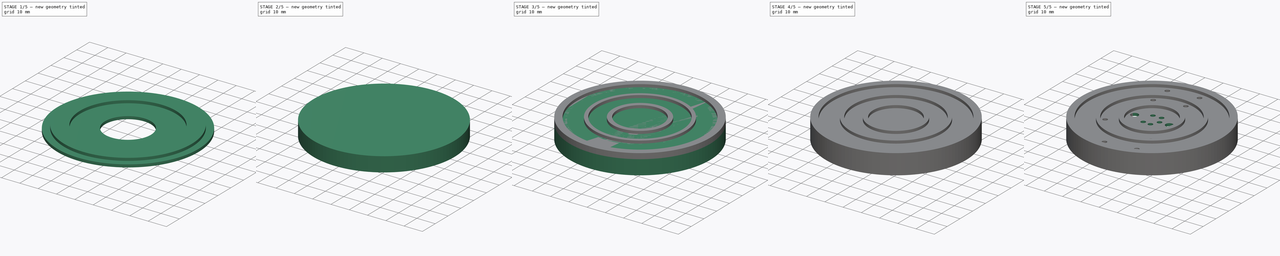
[diagram: build sequence overview — one tinted view per stage of 5, left to right]
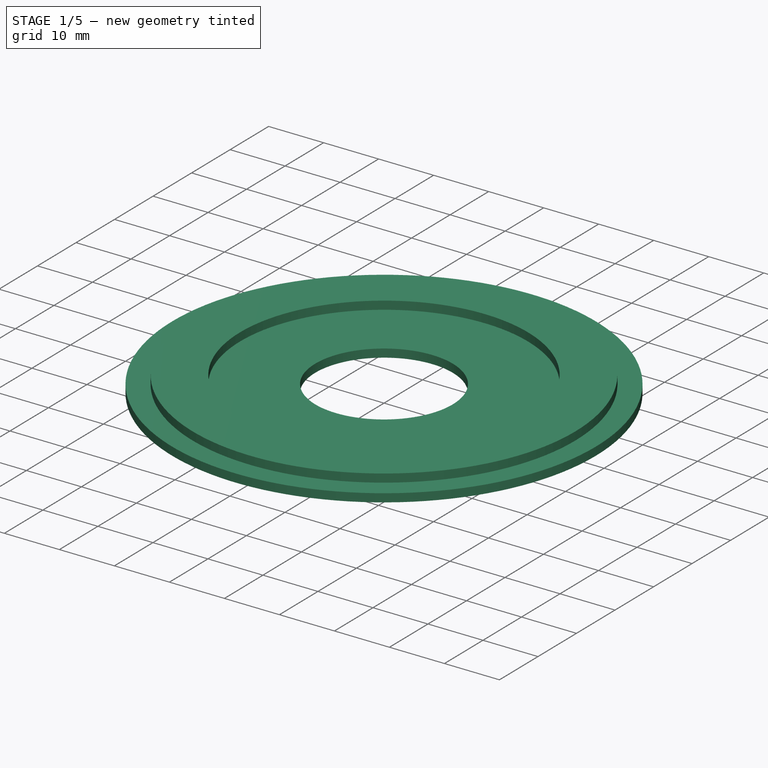
[diagram: stage 1 of 5 — iso view after this stage's code; geometry added in this stage tinted green]
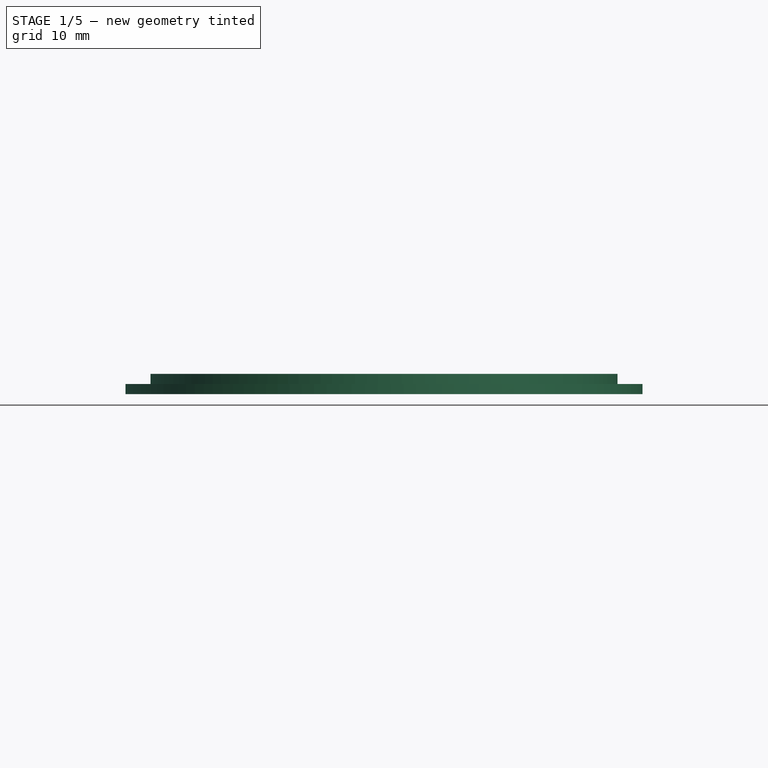
[diagram: stage 1 of 5 — front view after this stage's code; geometry added in this stage tinted green]
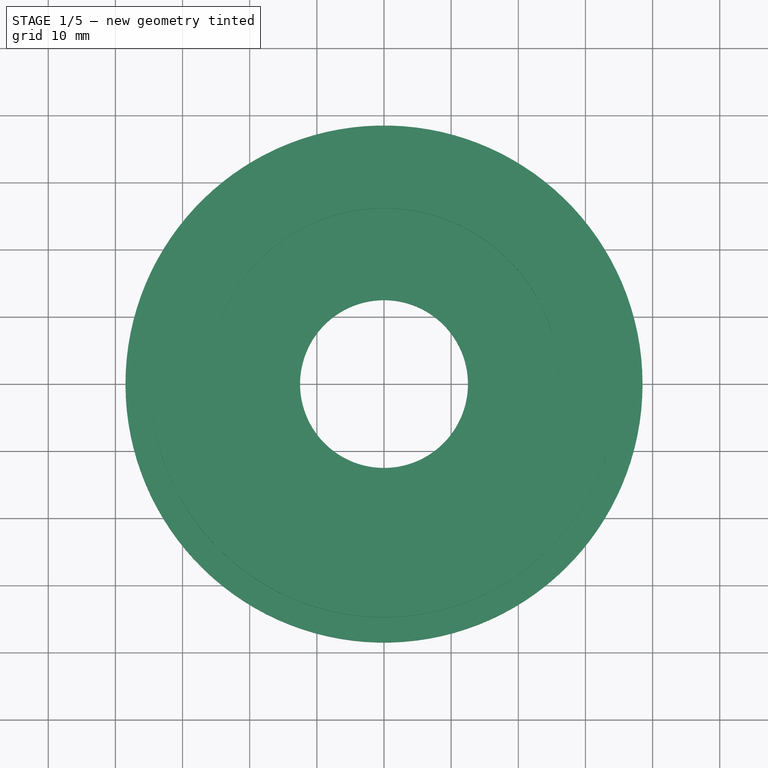
[diagram: stage 1 of 5 — top view after this stage's code; geometry added in this stage tinted green]
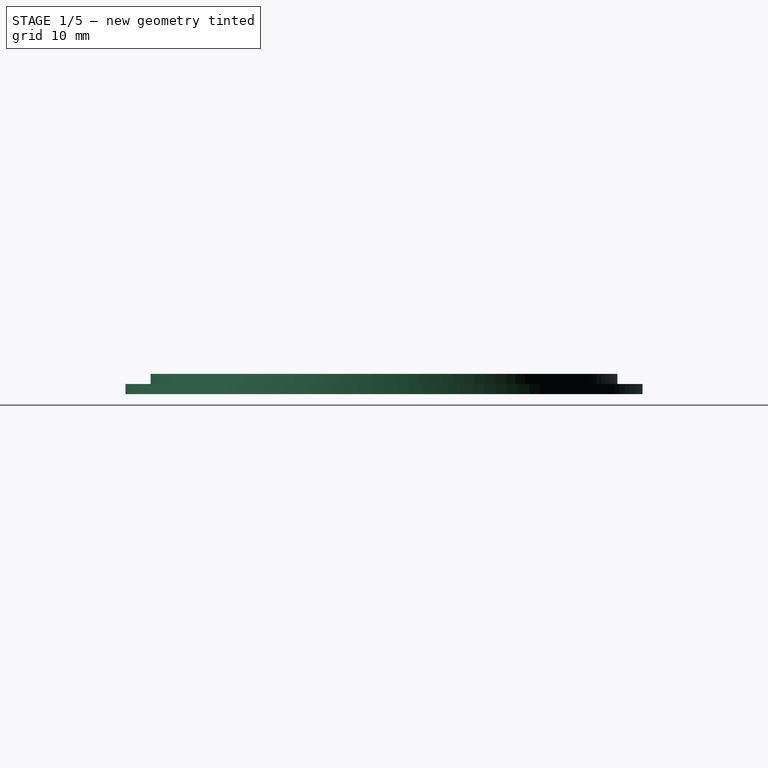
[diagram: stage 1 of 5 — right view after this stage's code; geometry added in this stage tinted green]
FCSTD DOCUMENT  (FreeCAD 0.15R4671 (Git))
Label: u-px-gnd-illuminator-cap
License: All rights reserved
LicenseURL: http://es.wikipedia.org/wiki/Todos_los_derechos_reservados
objects: Sketcher::SketchObject×18, Part::Cut×14, Part::FeaturePython×9, Part::Cylinder×8, Part::MultiFuse×1
note: 50 computed .brp shape members not serialized (recipe doc carries the construction recipe); baked Part::Feature solids carry a one-line shape summary decoded from their .brp

FEATURE [Sketcher::SketchObject] PCB_Border006
  sketch-geometry (1):
    g0: Circle CenterX=0 CenterY=0 CenterZ=0 NormalX=0 NormalY=0 NormalZ=1 Radius=12.5004
  constraints (1):
    c: Radius(g0) = 12.5004
FEATURE [Sketcher::SketchObject] PCB_Holes006
FEATURE [Part::FeaturePython] Board006  # WARN: FeaturePython — macro-defined, semantics opaque (R4)
  AutoUpdate = true
  Border = -> PCB_Border006
  Display = true
  Holes = -> PCB_Holes006
  Thickness = 1.5
FEATURE [Part::Cylinder] Cylinder003  label="Cilindro003"
  Angle = 360
  Height = 1.5
  Radius = 38.5
FEATURE [Part::Cut] Cut008
  Base = -> Cylinder003
  Tool = -> Board006
FEATURE [Part::Cylinder] Cylinder006  label="Cilindro006"
  Angle = 360
  Height = 1.5
  Placement = pos=(0,0,1.5) rot=(0,0,1;0rad)
  Radius = 26.162
FEATURE [Part::Cylinder] Cylinder007  label="Cilindro007"
  Angle = 360
  Height = 1.5
  Placement = pos=(0,0,1.5) rot=(0,0,1;0rad)
  Radius = 34.766
FEATURE [Part::Cut] Cut012
  Base = -> Cylinder007
  Tool = -> Cylinder006
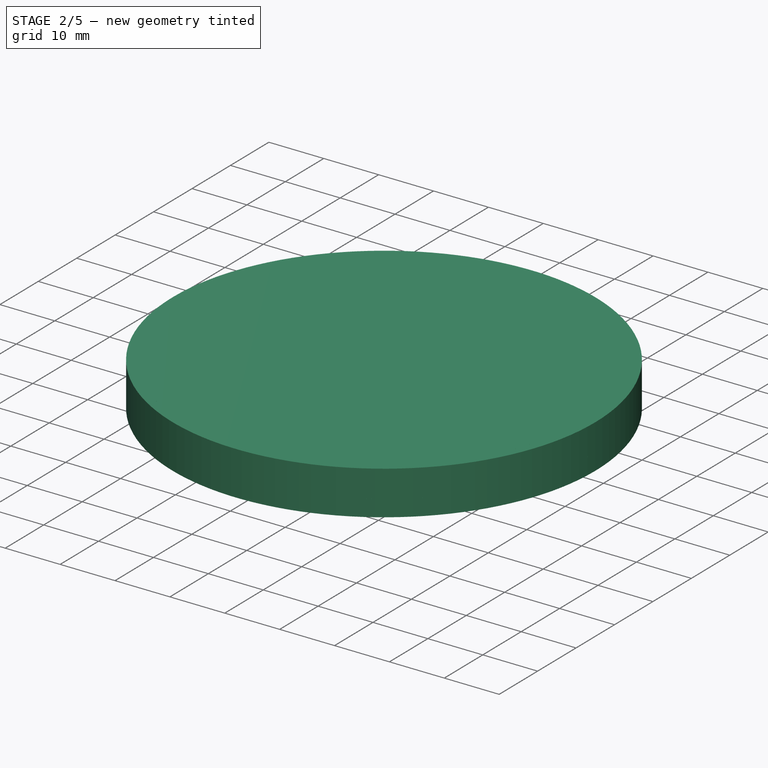
[diagram: stage 2 of 5 — iso view after this stage's code; geometry added in this stage tinted green]
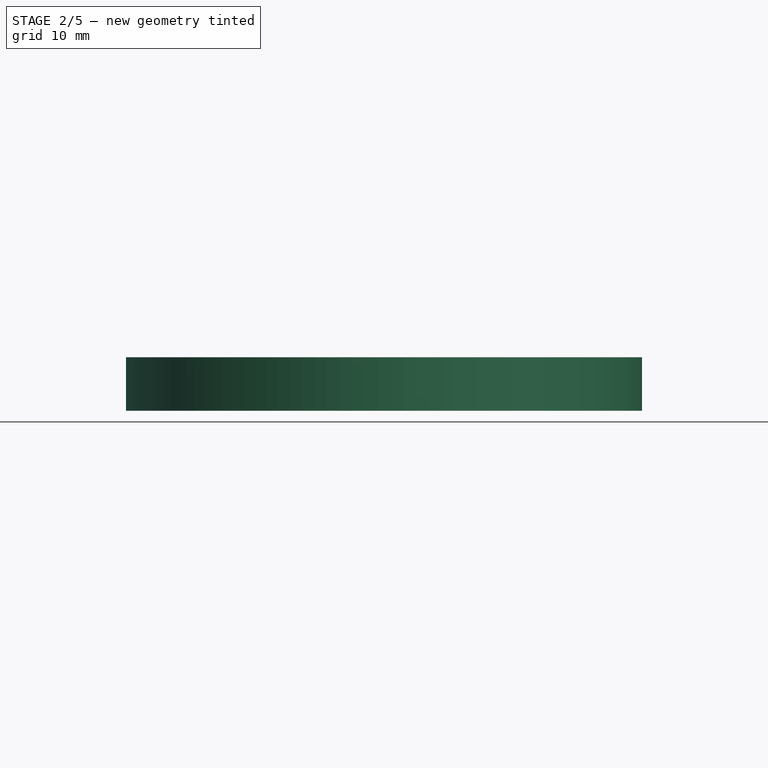
[diagram: stage 2 of 5 — front view after this stage's code; geometry added in this stage tinted green]
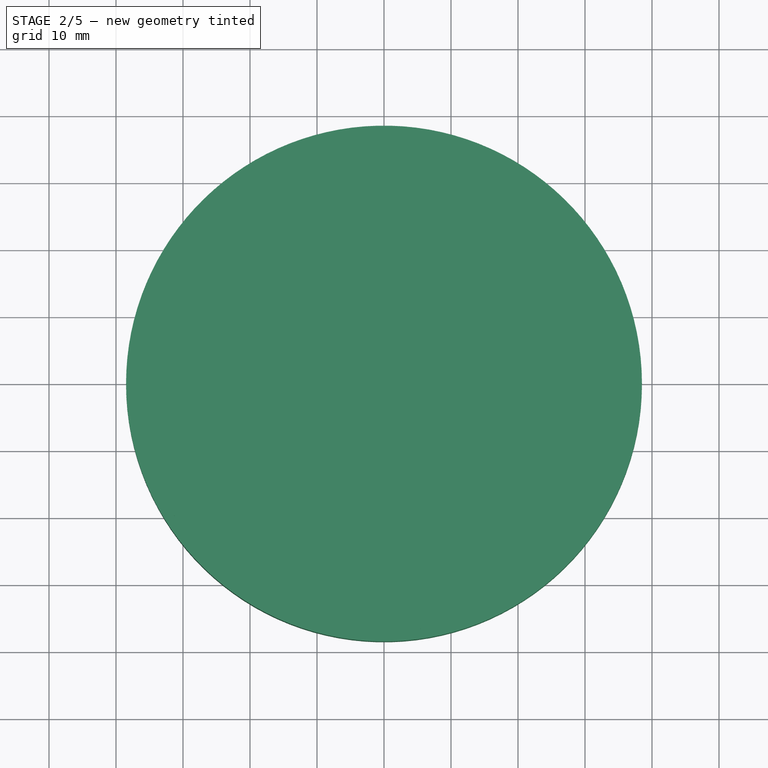
[diagram: stage 2 of 5 — top view after this stage's code; geometry added in this stage tinted green]
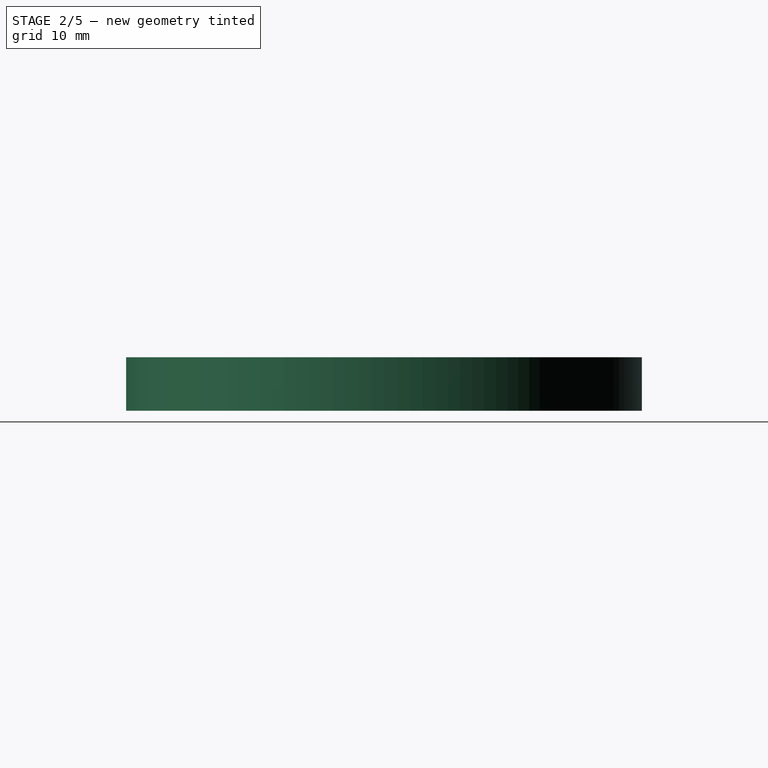
[diagram: stage 2 of 5 — right view after this stage's code; geometry added in this stage tinted green]
FEATURE [Sketcher::SketchObject] PCB_Border007
  sketch-geometry (5):
    g0: ArcOfCircle CenterX=0.0751722 CenterY=-0.924744 CenterZ=0 NormalX=0 NormalY=0 NormalZ=1 Radius=33.766 StartAngle=1.57302 EndAngle=3.1142
    g1: ArcOfCircle CenterX=-0.0751722 CenterY=-0.367895 CenterZ=0 NormalX=0 NormalY=0 NormalZ=1 Radius=33.766 StartAngle=0.0108956 EndAngle=1.56857
    g2: ArcOfCircle CenterX=-0.0751722 CenterY=0.367895 CenterZ=0 NormalX=0 NormalY=0 NormalZ=1 Radius=33.766 StartAngle=4.71462 EndAngle=6.27229
    g3: ArcOfCircle CenterX=0.0751722 CenterY=0.0751722 CenterZ=0 NormalX=0 NormalY=0 NormalZ=1 Radius=33.766 StartAngle=3.14382 EndAngle=4.71016
    g4: Circle CenterX=0 CenterY=0 CenterZ=0 NormalX=0 NormalY=0 NormalZ=1 Radius=25.162
  constraints (1):
    c: Radius(g4) = 25.162
FEATURE [Sketcher::SketchObject] PCB_Holes007
FEATURE [Part::FeaturePython] Board007  # WARN: FeaturePython — macro-defined, semantics opaque (R4)
  AutoUpdate = true
  Border = -> PCB_Border007
  Display = true
  Holes = -> PCB_Holes007
  Thickness = 1.5
FEATURE [Sketcher::SketchObject] PCB_Border008
  sketch-geometry (2):
    g0: Circle CenterX=0 CenterY=0 CenterZ=0 NormalX=0 NormalY=0 NormalZ=1 Radius=23.225
    g1: Circle CenterX=0 CenterY=0 CenterZ=0 NormalX=0 NormalY=0 NormalZ=1 Radius=14.875
  constraints (2):
    c: Radius(g0) = 23.225
    c: Radius(g1) = 14.875
FEATURE [Sketcher::SketchObject] PCB_Holes008
FEATURE [Part::FeaturePython] Board008  # WARN: FeaturePython — macro-defined, semantics opaque (R4)
  AutoUpdate = true
  Border = -> PCB_Border008
  Display = true
  Holes = -> PCB_Holes008
  Thickness = 1.5
FEATURE [Part::Cut] Cut009
  Base = -> Cut008
  Tool = -> Board008
FEATURE [Part::Cut] Cut010
  Base = -> Cut009
  Placement = pos=(0,0,1.5) rot=(0,0,1;0rad)
  Tool = -> Board007
FEATURE [Part::Cylinder] Cylinder004  label="Cilindro004"
  Angle = 360
  Height = 8
  Radius = 38.5
FEATURE [Part::Cylinder] Cylinder005  label="Cilindro005"
  Angle = 360
  Height = 8
  Radius = 37
FEATURE [Part::Cut] Cut013
  Base = -> Cut010
  Tool = -> Cut012
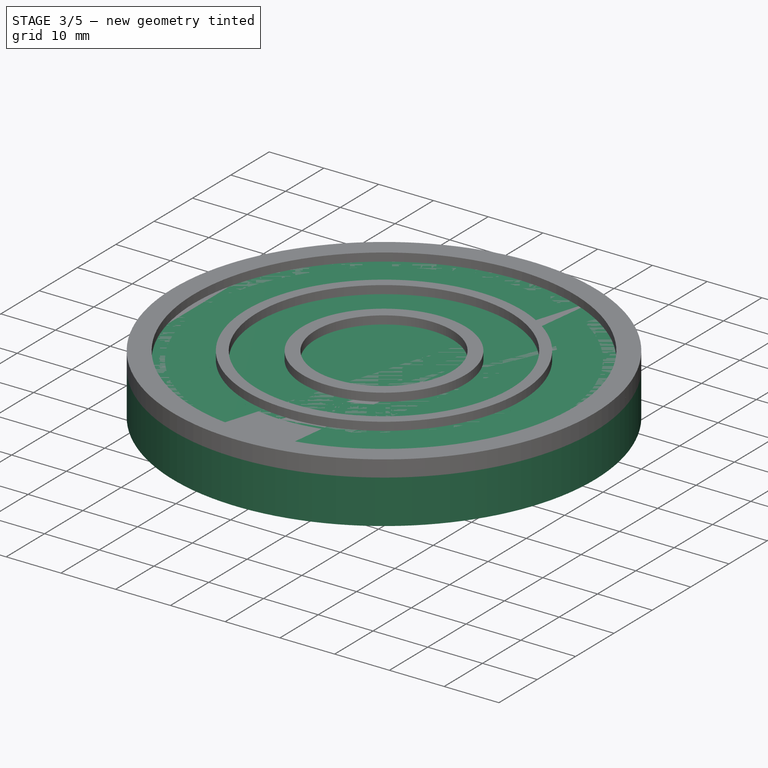
[diagram: stage 3 of 5 — iso view after this stage's code; geometry added in this stage tinted green]
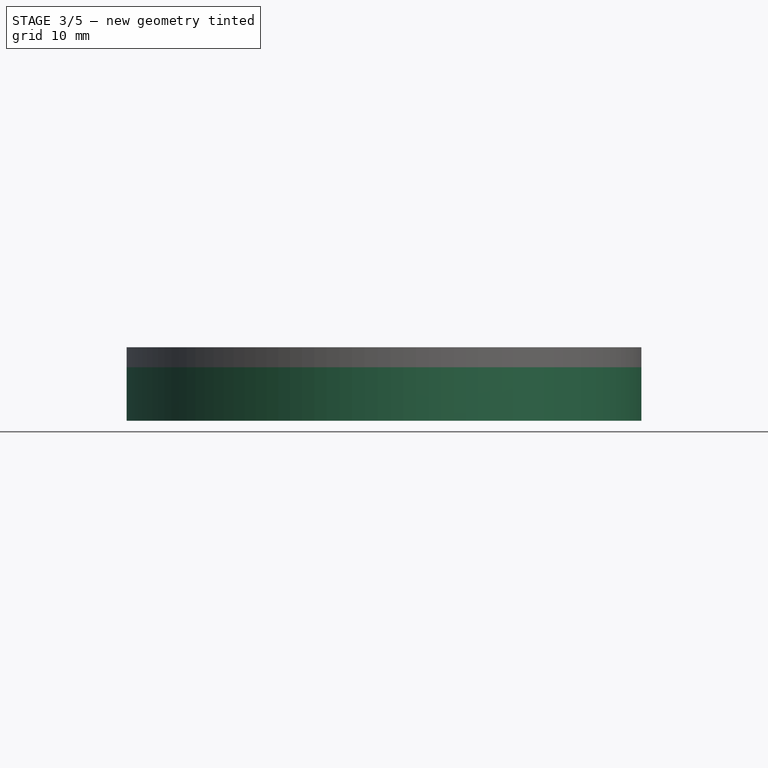
[diagram: stage 3 of 5 — front view after this stage's code; geometry added in this stage tinted green]
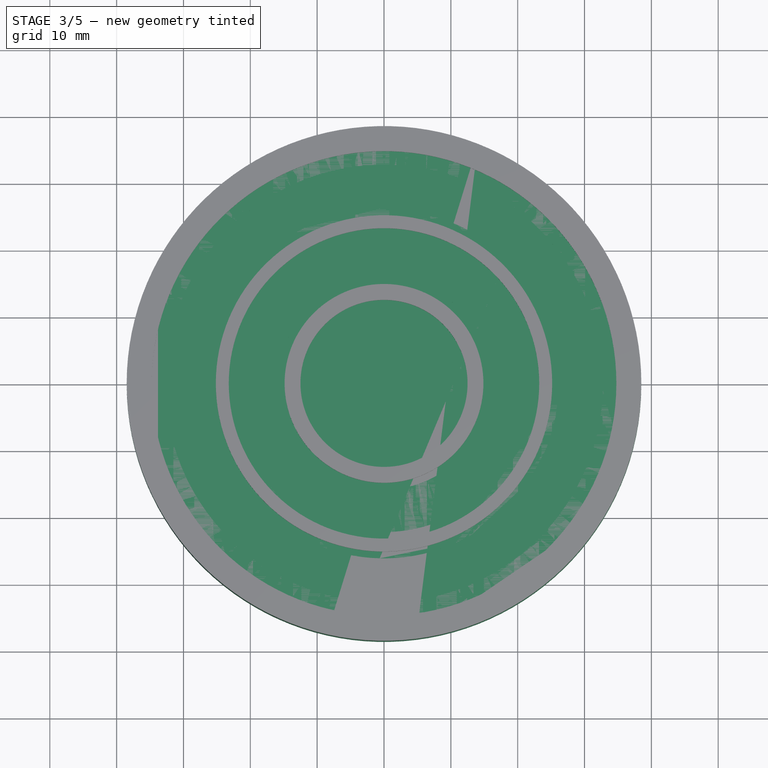
[diagram: stage 3 of 5 — top view after this stage's code; geometry added in this stage tinted green]
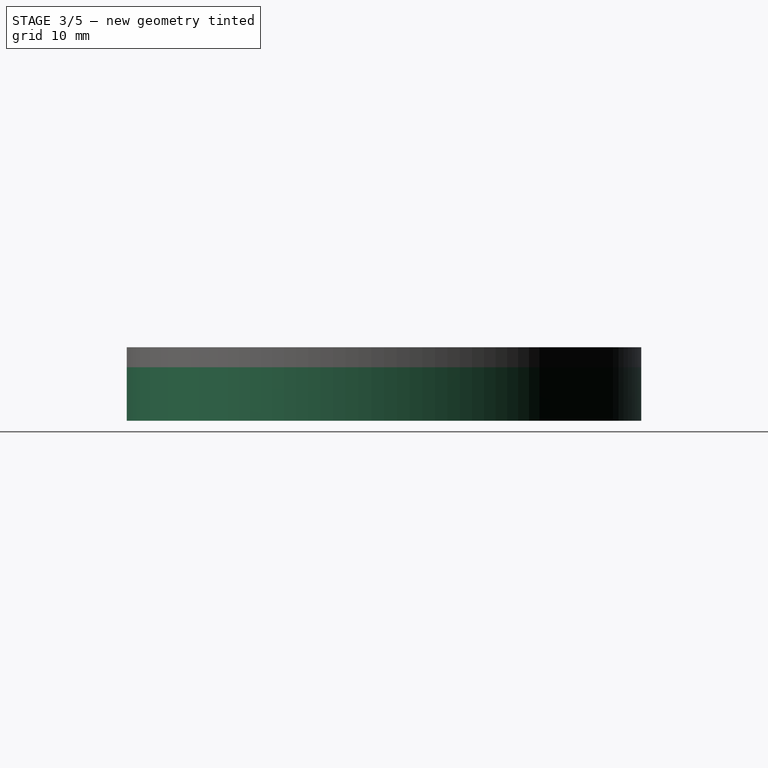
[diagram: stage 3 of 5 — right view after this stage's code; geometry added in this stage tinted green]
FEATURE [Sketcher::SketchObject] PCB_Border004
  sketch-geometry (5):
    g0: ArcOfCircle CenterX=0 CenterY=0 CenterZ=0 NormalX=0 NormalY=0 NormalZ=1 Radius=32.766 StartAngle=1.5708 EndAngle=3.14159
    g1: ArcOfCircle CenterX=0 CenterY=0 CenterZ=0 NormalX=0 NormalY=0 NormalZ=1 Radius=32.766 StartAngle=0 EndAngle=1.5708
    g2: ArcOfCircle CenterX=0 CenterY=0 CenterZ=0 NormalX=0 NormalY=0 NormalZ=1 Radius=32.766 StartAngle=4.71239 EndAngle=6.28319
    g3: ArcOfCircle CenterX=0 CenterY=0 CenterZ=0 NormalX=0 NormalY=0 NormalZ=1 Radius=32.766 StartAngle=3.14159 EndAngle=4.71239
    g4: Circle CenterX=0 CenterY=0 CenterZ=0 NormalX=0 NormalY=0 NormalZ=1 Radius=26.162
FEATURE [Sketcher::SketchObject] PCB_Holes004
FEATURE [Part::FeaturePython] Board004  # WARN: FeaturePython — macro-defined, semantics opaque (R4)
  AutoUpdate = true
  Border = -> PCB_Border004
  Display = true
  Holes = -> PCB_Holes004
  Thickness = 1.5
FEATURE [Sketcher::SketchObject] PCB_Border005
  sketch-geometry (2):
    g0: Circle CenterX=0 CenterY=0 CenterZ=0 NormalX=0 NormalY=0 NormalZ=1 Radius=22.225
    g1: Circle CenterX=0 CenterY=0 CenterZ=0 NormalX=0 NormalY=0 NormalZ=1 Radius=15.875
FEATURE [Sketcher::SketchObject] PCB_Holes005
FEATURE [Part::FeaturePython] Board005  # WARN: FeaturePython — macro-defined, semantics opaque (R4)
  AutoUpdate = true
  Border = -> PCB_Border005
  Display = true
  Holes = -> PCB_Holes005
  Thickness = 1.5
FEATURE [Part::Cylinder] Cylinder001  label="Cilindro001"
  Angle = 360
  Height = 1.5
  Radius = 38.5
FEATURE [Part::Cut] Cut003
  Base = -> Cylinder001
  Tool = -> Board004
FEATURE [Part::Cylinder] Cylinder002  label="Cilindro002"
  Angle = 360
  Height = 1.5
  Radius = 38.5
FEATURE [Part::Cut] Cut011
  Base = -> Cylinder004
  Placement = pos=(0,0,-8) rot=(0,0,1;0rad)
  Tool = -> Cylinder005
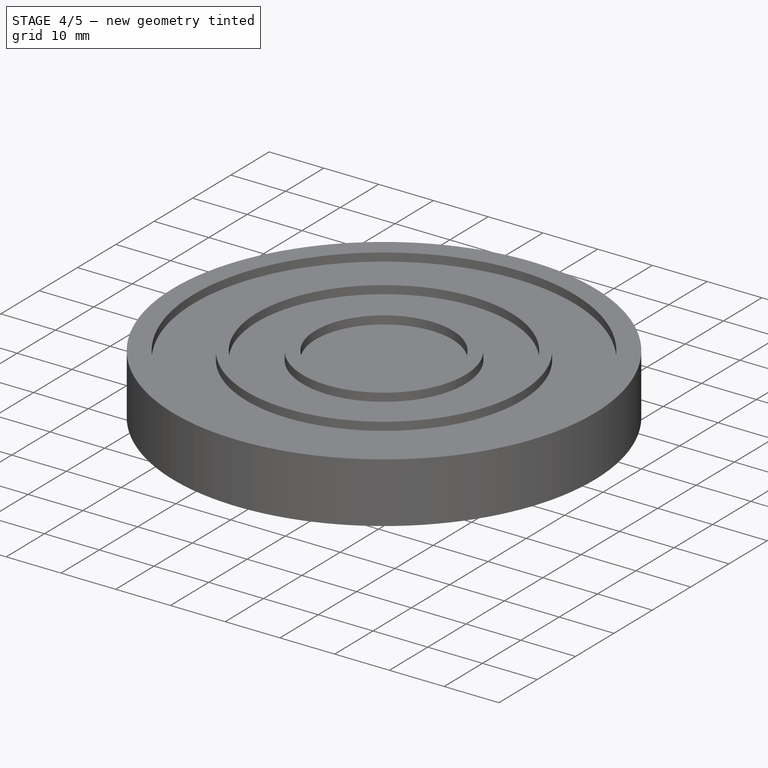
[diagram: stage 4 of 5 — iso view after this stage's code; geometry added in this stage tinted green]
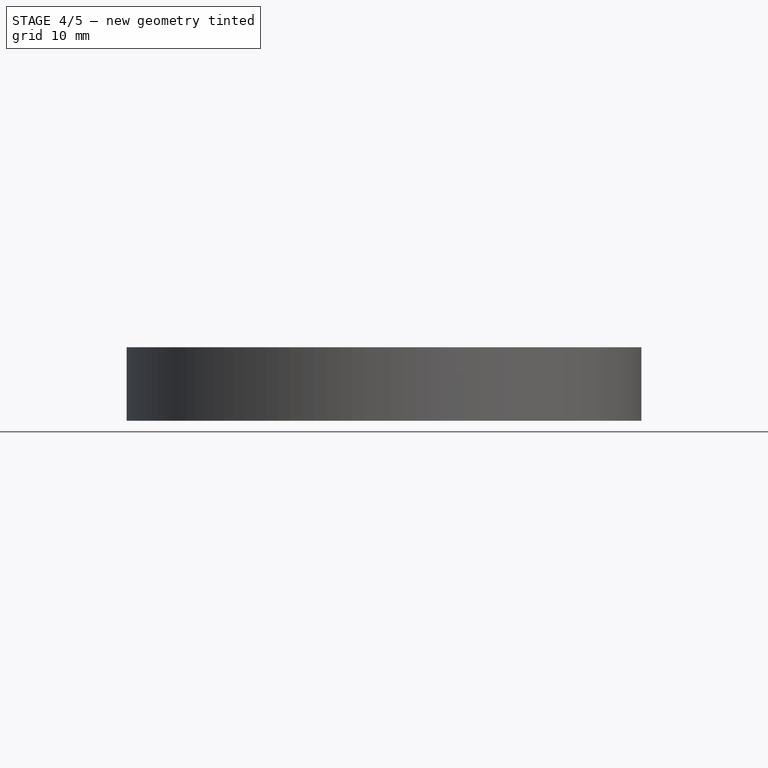
[diagram: stage 4 of 5 — front view after this stage's code; geometry added in this stage tinted green]
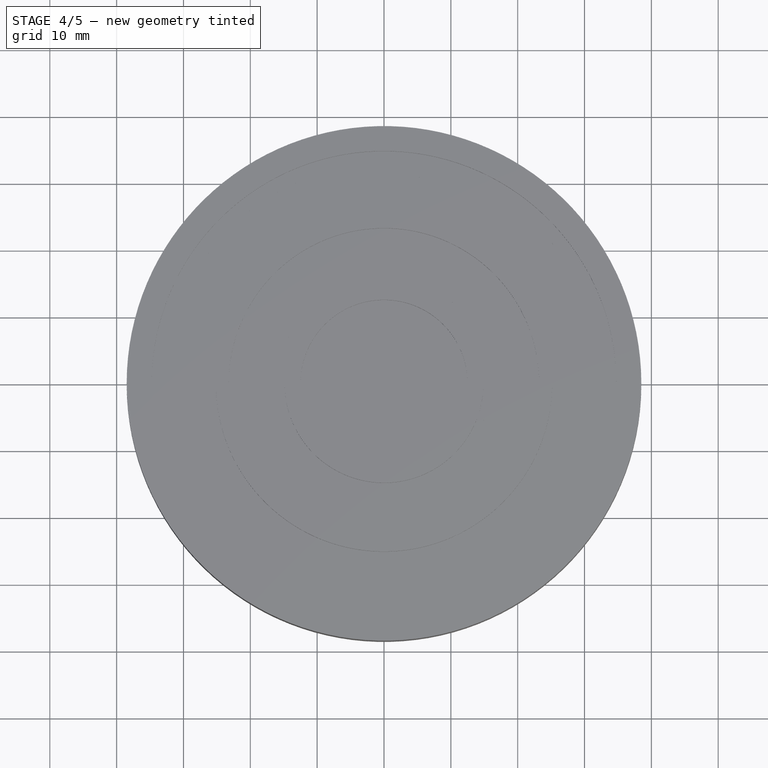
[diagram: stage 4 of 5 — top view after this stage's code; geometry added in this stage tinted green]
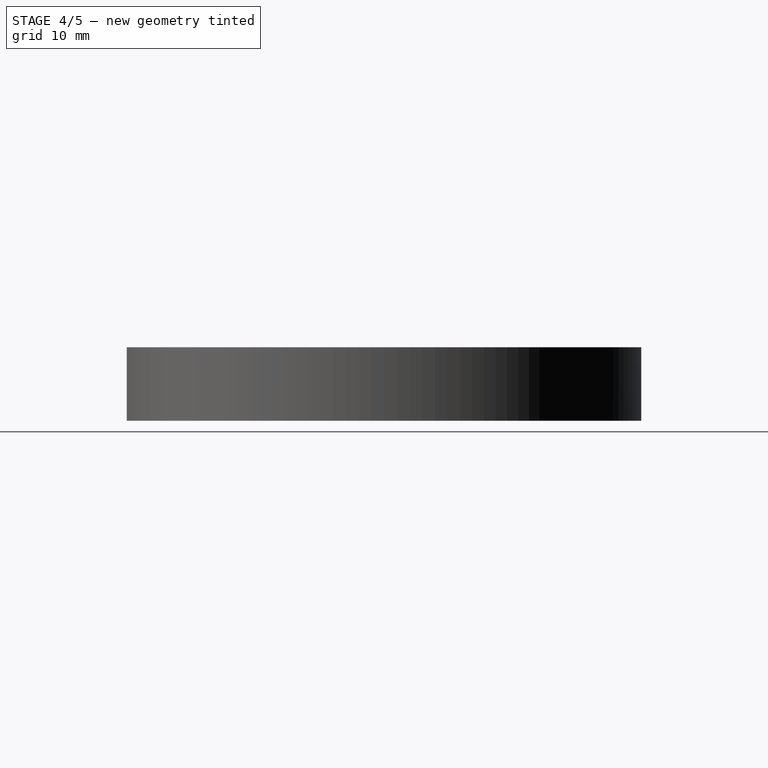
[diagram: stage 4 of 5 — right view after this stage's code; geometry added in this stage tinted green]
FEATURE [Sketcher::SketchObject] PCB_Border
  sketch-geometry (2):
    g0: Circle CenterX=0 CenterY=0 CenterZ=0 NormalX=0 NormalY=0 NormalZ=1 Radius=22.225
    g1: Circle CenterX=0 CenterY=0 CenterZ=0 NormalX=0 NormalY=0 NormalZ=1 Radius=15.875
FEATURE [Sketcher::SketchObject] PCB_Holes
  sketch-geometry (4):
    g0: Circle CenterX=-11.633 CenterY=17.551 CenterZ=0 NormalX=0 NormalY=0 NormalZ=1 Radius=1.25
    g1: Circle CenterX=4.115 CenterY=20.65 CenterZ=0 NormalX=0 NormalY=0 NormalZ=1 Radius=1.25
    g2: Circle CenterX=-17.551 CenterY=-11.633 CenterZ=0 NormalX=0 NormalY=0 NormalZ=1 Radius=1.25
    g3: Circle CenterX=11.684 CenterY=-17.526 CenterZ=0 NormalX=0 NormalY=0 NormalZ=1 Radius=1.25
  constraints (4):
    c: Radius(g0) = 1.25
    c: Radius(g1) = 1.25
    c: Radius(g2) = 1.25
    c: Radius(g3) = 1.25
FEATURE [Part::FeaturePython] Board  # WARN: FeaturePython — macro-defined, semantics opaque (R4)
  AutoUpdate = true
  Border = -> PCB_Border
  Display = true
  Holes = -> PCB_Holes
  Thickness = 1.5
FEATURE [Sketcher::SketchObject] PCB_Border001
  sketch-geometry (5):
    g0: ArcOfCircle CenterX=0 CenterY=0 CenterZ=0 NormalX=0 NormalY=0 NormalZ=1 Radius=32.766 StartAngle=1.5708 EndAngle=3.14159
    g1: ArcOfCircle CenterX=0 CenterY=0 CenterZ=0 NormalX=0 NormalY=0 NormalZ=1 Radius=32.766 StartAngle=0 EndAngle=1.5708
    g2: ArcOfCircle CenterX=0 CenterY=0 CenterZ=0 NormalX=0 NormalY=0 NormalZ=1 Radius=32.766 StartAngle=4.71239 EndAngle=6.28319
    g3: ArcOfCircle CenterX=0 CenterY=0 CenterZ=0 NormalX=0 NormalY=0 NormalZ=1 Radius=32.766 StartAngle=3.14159 EndAngle=4.71239
    g4: Circle CenterX=0 CenterY=0 CenterZ=0 NormalX=0 NormalY=0 NormalZ=1 Radius=26.162
FEATURE [Sketcher::SketchObject] PCB_Holes001
  sketch-geometry (4):
    g0: Circle CenterX=-4.14 CenterY=-31.318 CenterZ=0 NormalX=0 NormalY=0 NormalZ=1 Radius=1.25
    g1: Circle CenterX=12.09 CenterY=-29.185 CenterZ=0 NormalX=0 NormalY=0 NormalZ=1 Radius=1.25
    g2: Circle CenterX=4.14 CenterY=31.318 CenterZ=0 NormalX=0 NormalY=0 NormalZ=1 Radius=1.25
    g3: Circle CenterX=-12.065 CenterY=29.21 CenterZ=0 NormalX=0 NormalY=0 NormalZ=1 Radius=1.25
  constraints (4):
    c: Radius(g0) = 1.25
    c: Radius(g1) = 1.25
    c: Radius(g2) = 1.25
    c: Radius(g3) = 1.25
FEATURE [Part::FeaturePython] Board001  # WARN: FeaturePython — macro-defined, semantics opaque (R4)
  AutoUpdate = true
  Border = -> PCB_Border001
  Display = true
  Holes = -> PCB_Holes001
  Thickness = 1.5
FEATURE [Part::Cylinder] Cylinder  label="Cilindro"
  Angle = 360
  Height = 1.5
  Radius = 38.5
FEATURE [Part::Cut] Cut
  Base = -> Cylinder
  Tool = -> Board001
FEATURE [Sketcher::SketchObject] PCB_Border003
  sketch-geometry (1):
    g0: Circle CenterX=0 CenterY=0 CenterZ=0 NormalX=0 NormalY=0 NormalZ=1 Radius=11.5004
FEATURE [Sketcher::SketchObject] PCB_Holes003
FEATURE [Part::FeaturePython] Board003  # WARN: FeaturePython — macro-defined, semantics opaque (R4)
  AutoUpdate = true
  Border = -> PCB_Border003
  Display = true
  Holes = -> PCB_Holes003
  Thickness = 1.5
FEATURE [Part::Cut] Cut004
  Base = -> Cut003
  Tool = -> Board005
FEATURE [Part::Cut] Cut005
  Base = -> Cut004
  Tool = -> Board003
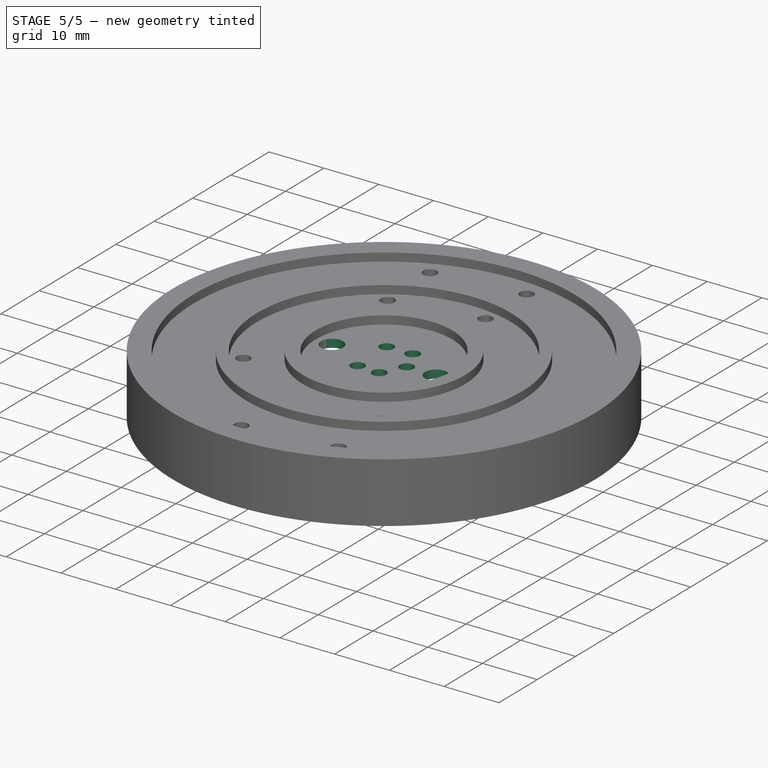
[diagram: stage 5 of 5 — iso view after this stage's code; geometry added in this stage tinted green]
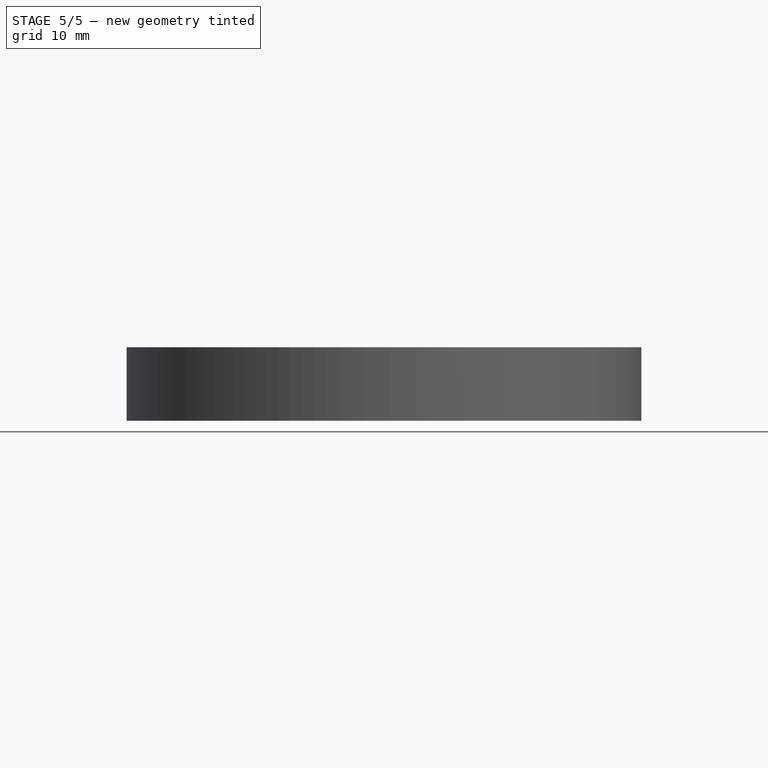
[diagram: stage 5 of 5 — front view after this stage's code; geometry added in this stage tinted green]
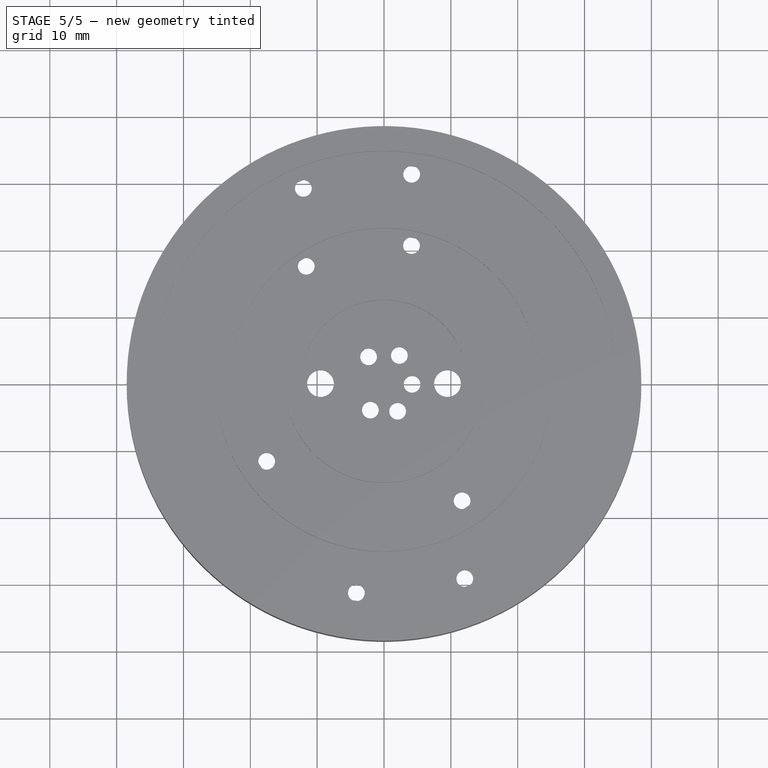
[diagram: stage 5 of 5 — top view after this stage's code; geometry added in this stage tinted green]
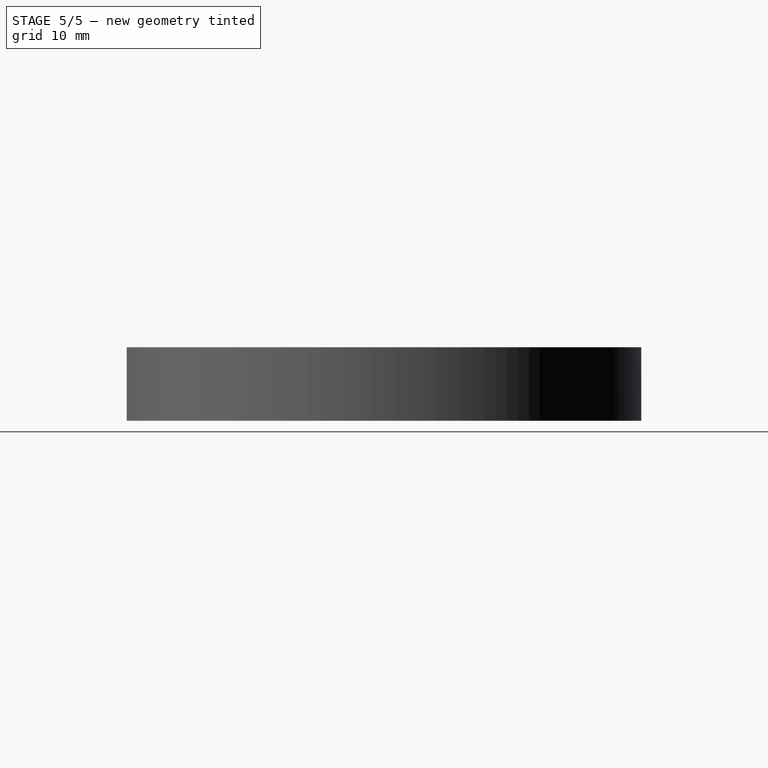
[diagram: stage 5 of 5 — right view after this stage's code; geometry added in this stage tinted green]
FEATURE [Sketcher::SketchObject] PCB_Border002
  sketch-geometry (1):
    g0: Circle CenterX=0 CenterY=0 CenterZ=0 NormalX=0 NormalY=0 NormalZ=1 Radius=11.5004
FEATURE [Sketcher::SketchObject] PCB_Holes002
  sketch-geometry (7):
    g0: Circle CenterX=9.5 CenterY=0 CenterZ=0 NormalX=0 NormalY=0 NormalZ=1 Radius=2
    g1: Circle CenterX=-9.5 CenterY=0 CenterZ=0 NormalX=0 NormalY=0 NormalZ=1 Radius=2
    g2: Circle CenterX=-2.041 CenterY=-3.963 CenterZ=0 NormalX=0 NormalY=0 NormalZ=1 Radius=1.25
    g3: Circle CenterX=-2.303 CenterY=4.004 CenterZ=0 NormalX=0 NormalY=0 NormalZ=1 Radius=1.25
    g4: Circle CenterX=2.043 CenterY=-4.141 CenterZ=0 NormalX=0 NormalY=0 NormalZ=1 Radius=1.25
    g5: Circle CenterX=4.207 CenterY=-0.108 CenterZ=0 NormalX=0 NormalY=0 NormalZ=1 Radius=1.25
    g6: Circle CenterX=2.3 CenterY=4.2 CenterZ=0 NormalX=0 NormalY=0 NormalZ=1 Radius=1.25
  constraints (7):
    c: Radius(g6) = 1.25
    c: Radius(g5) = 1.25
    c: Radius(g4) = 1.25
    c: Radius(g3) = 1.25
    c: Radius(g2) = 1.25
    c: Radius(g1) = 2
    c: Radius(g0) = 2
FEATURE [Part::FeaturePython] Board002  # WARN: FeaturePython — macro-defined, semantics opaque (R4)
  AutoUpdate = true
  Border = -> PCB_Border002
  Display = true
  Holes = -> PCB_Holes002
  Thickness = 1.5
FEATURE [Part::Cut] Cut001
  Base = -> Cut
  Tool = -> Board
FEATURE [Part::Cut] Cut002
  Base = -> Cut001
  Tool = -> Board002
FEATURE [Part::Cut] Cut006
  Base = -> Cut002
  Tool = -> Cut005
FEATURE [Part::Cut] Cut007
  Base = -> Cylinder002
  Tool = -> Cut006
FEATURE [Part::MultiFuse] Fusion
  Shapes = -> [Cut007,Cut011,Cut013]
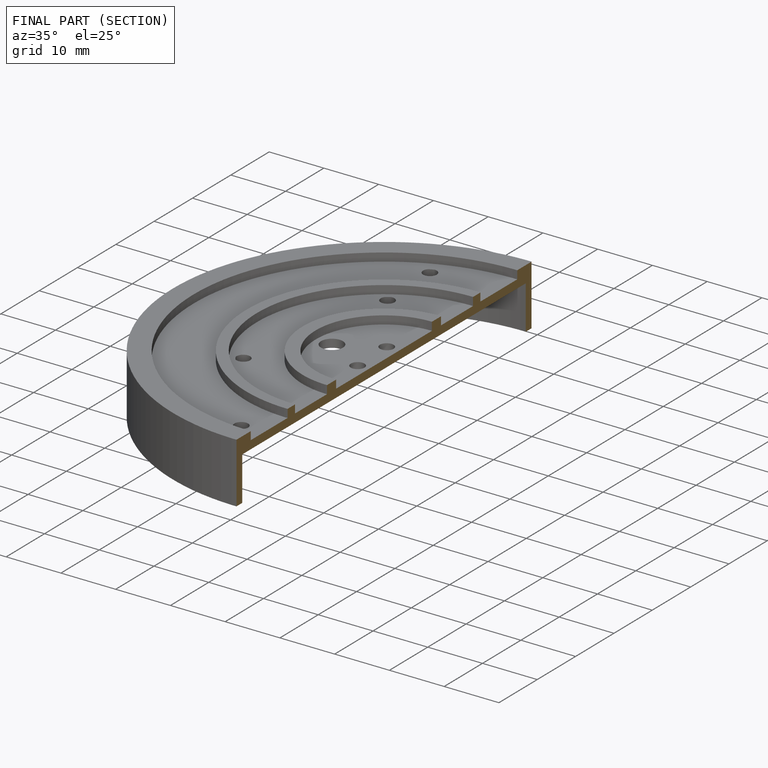
[diagram: finished part — half-section view (interior)]
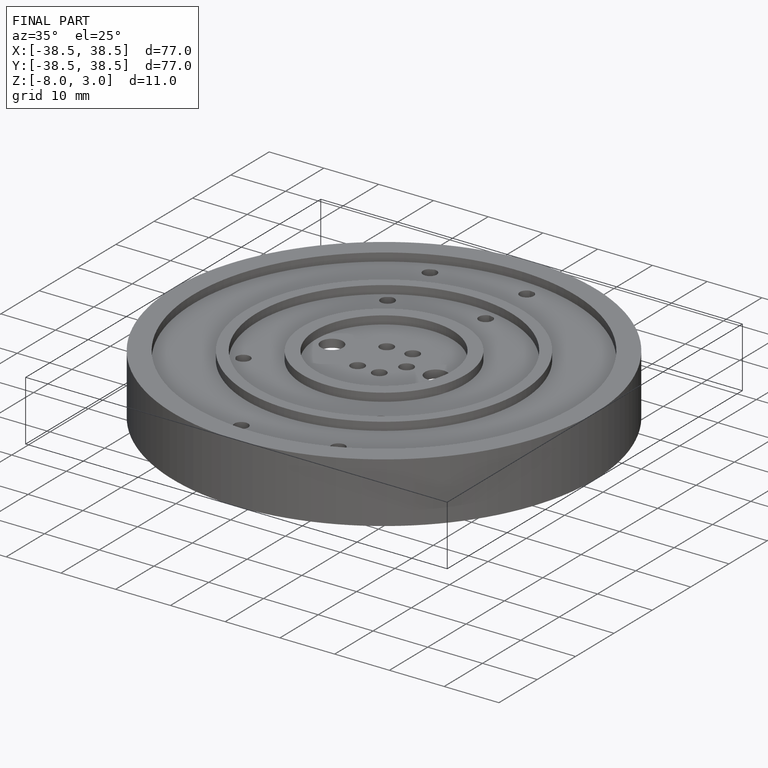
[diagram: finished part — iso view with bounding-box wireframe]
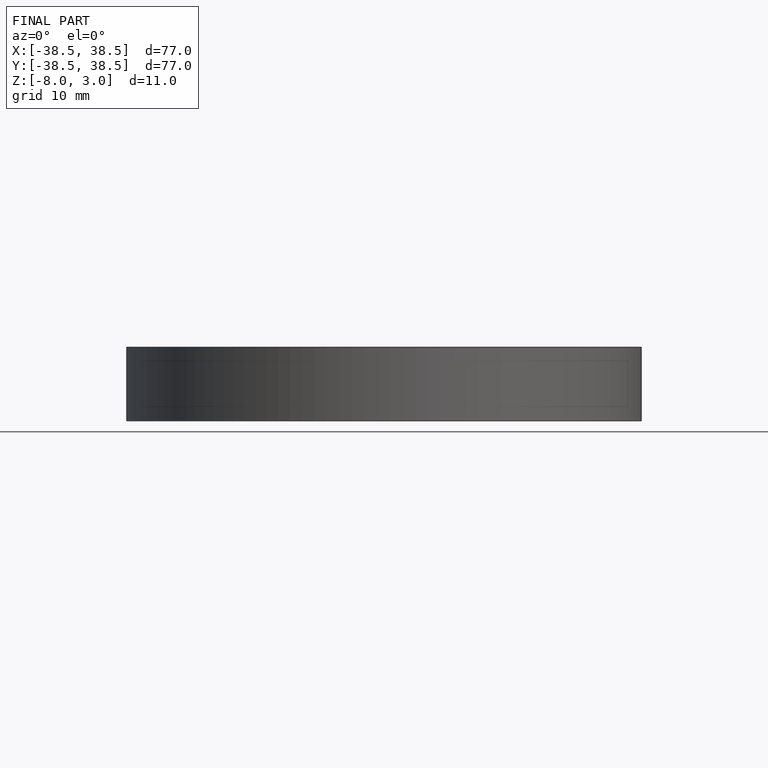
[diagram: finished part — front view with bounding-box wireframe]
